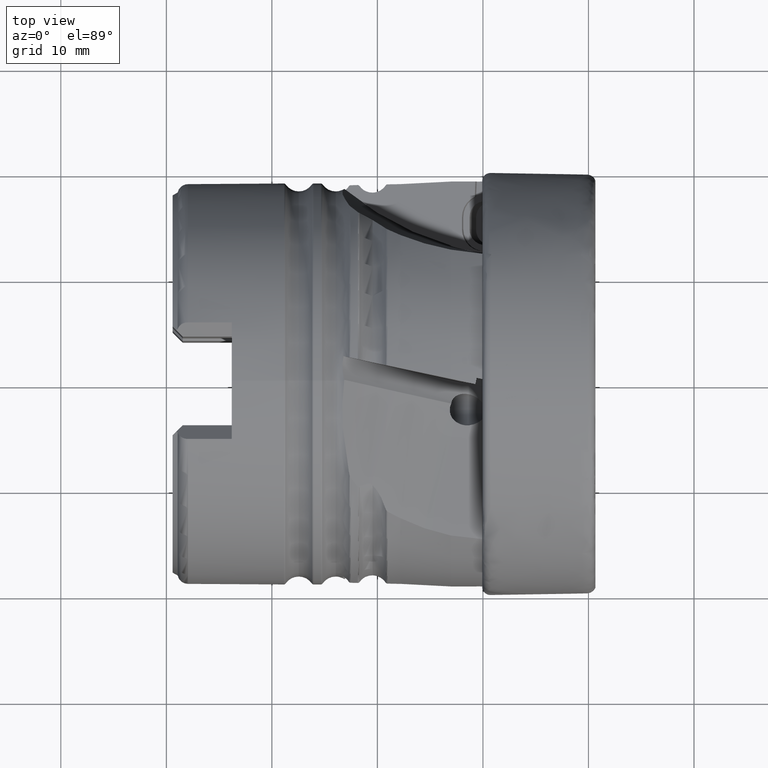
[diagram: clean part render]
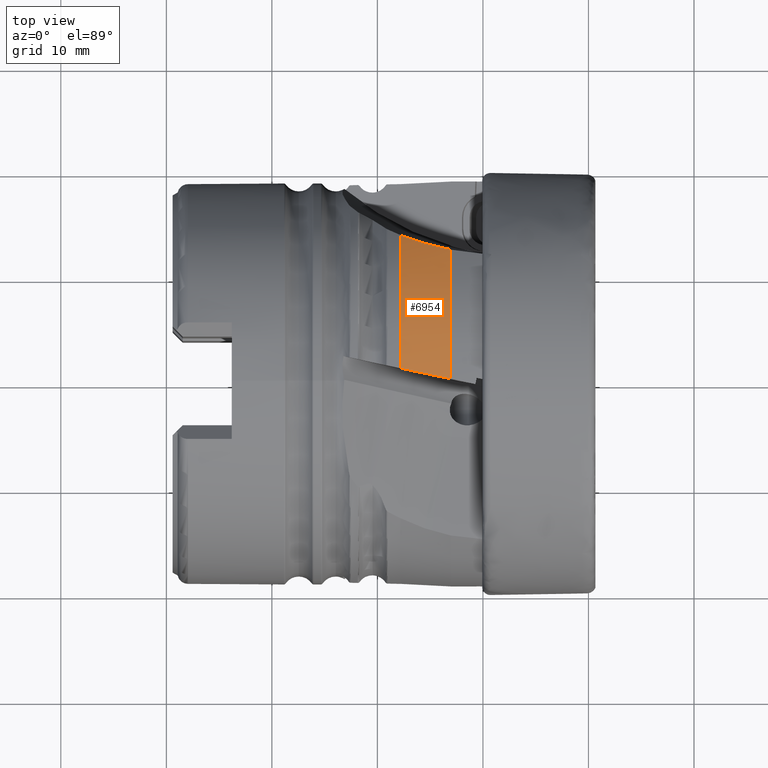
[diagram: same view with one face highlighted and labeled with its STEP entity id]
A machine part, top view. The second image highlights one B-rep face of the part: STEP entity #6954.
In plain terms, the highlighted conical surface has half-angle 2.291 deg.
Its self-contained STEP definition (entity closure, byte-faithful):
#227 =( BOUNDED_CURVE ( )  B_SPLINE_CURVE ( 3, ( #1912, #1913, #1918, #1919 ),
 .UNSPECIFIED., .F., .F. ) 
 B_SPLINE_CURVE_WITH_KNOTS ( ( 4, 4 ),
 ( 1.768227104399719800, 1.820195321746340900 ),
 .UNSPECIFIED. ) 
 CURVE ( )  GEOMETRIC_REPRESENTATION_ITEM ( )  RATIONAL_B_SPLINE_CURVE ( ( 1.000000000000000000, 0.9997749546946384000, 0.9997749546946384000, 1.000000000000000000 ) ) 
 REPRESENTATION_ITEM ( '' )  );
#354 = B_SPLINE_CURVE_WITH_KNOTS ( 'NONE', 3,
 ( #3640, #3635, #3634, #3641, #3642, #3643 ),
 .UNSPECIFIED., .F., .F.,
 ( 4, 2, 4 ),
 ( 2.060262636632892900E-007, 0.002603759459060581000, 0.005207312891857498800 ),
 .UNSPECIFIED. ) ;
#1215 = DIRECTION ( 'NONE',  ( 0.0000000000000000000, 0.0000000000000000000, -1.000000000000000000 ) ) ;
#1217 = CARTESIAN_POINT ( 'NONE',  ( -13.05000000000000600, 0.0000000000000000000, 0.0000000000000000000 ) ) ;
#1218 = DIRECTION ( 'NONE',  ( 1.000000000000000000, -0.0000000000000000000, -0.0000000000000000000 ) ) ;
#1258 = CARTESIAN_POINT ( 'NONE',  ( -17.80000000000002200, 13.88638631023993900, 12.96797113055009900 ) ) ;
#1322 = CARTESIAN_POINT ( 'NONE',  ( -17.80000000000000800, 0.0000000000000000000, 0.0000000000000000000 ) ) ;
#1323 = DIRECTION ( 'NONE',  ( 1.000000000000000000, -0.0000000000000000000, -0.0000000000000000000 ) ) ;
#1324 = DIRECTION ( 'NONE',  ( 0.0000000000000000000, 0.0000000000000000000, -1.000000000000000000 ) ) ;
#1473 = AXIS2_PLACEMENT_3D ( 'NONE', #1217, #1218, #1215 ) ;
#1480 = AXIS2_PLACEMENT_3D ( 'NONE', #1322, #1323, #1324 ) ;
#1530 = AXIS2_PLACEMENT_3D ( 'NONE', #2628, #2629, #2630 ) ;
#1849 = CIRCLE ( 'NONE', #1530, 19.19000000000000100 ) ;
#1912 = CARTESIAN_POINT ( 'NONE',  ( -13.05000000000000600, 0.1587158881291882700, 19.18934363825027500 ) ) ;
#1913 = CARTESIAN_POINT ( 'NONE',  ( -14.64250385638370700, 0.4972130322883580000, 19.12284158069783800 ) ) ;
#1918 = CARTESIAN_POINT ( 'NONE',  ( -16.22619359165712500, 0.8338366771701842800, 19.04772454267638100 ) ) ;
#1919 = CARTESIAN_POINT ( 'NONE',  ( -17.80000000000001100, 1.168359556061794500, 18.96404323839617900 ) ) ;
#2628 = CARTESIAN_POINT ( 'NONE',  ( -13.05000000000000600, 0.0000000000000000000, 0.0000000000000000000 ) ) ;
#2629 = DIRECTION ( 'NONE',  ( 1.000000000000000000, -0.0000000000000000000, -0.0000000000000000000 ) ) ;
#2630 = DIRECTION ( 'NONE',  ( 0.0000000000000000000, 0.0000000000000000000, -1.000000000000000000 ) ) ;
#3195 = CIRCLE ( 'NONE', #1480, 19.00000000000000000 ) ;
#3199 = FACE_OUTER_BOUND ( 'NONE', #8122, .T. ) ;
#3202 = CONICAL_SURFACE ( 'NONE', #1473, 19.19000000000000100, 0.03997868712329061300 ) ;
#3634 = CARTESIAN_POINT ( 'NONE',  ( -14.71121610252660600, 12.84205834470288600, 14.17446360283462100 ) ) ;
#3635 = CARTESIAN_POINT ( 'NONE',  ( -13.89246462813654200, 12.64355792279026500, 14.39312281298942300 ) ) ;
#3640 = CARTESIAN_POINT ( 'NONE',  ( -13.05000000000000400, 12.48310676093960600, 14.57491494297595800 ) ) ;
#3641 = CARTESIAN_POINT ( 'NONE',  ( -16.29679110481078700, 13.31106318221003600, 13.64652902368234100 ) ) ;
#3642 = CARTESIAN_POINT ( 'NONE',  ( -17.06368272358600200, 13.58160632517246200, 13.33748874391538800 ) ) ;
#3643 = CARTESIAN_POINT ( 'NONE',  ( -17.80000000000002200, 13.88638631023993900, 12.96797113055009900 ) ) ;
#3764 = EDGE_CURVE ( 'NONE', #4823, #7903, #354, .T. ) ;
#4823 = VERTEX_POINT ( 'NONE', #5719 ) ;
#4827 = VERTEX_POINT ( 'NONE', #5726 ) ;
#4857 = VERTEX_POINT ( 'NONE', #5782 ) ;
#5719 = CARTESIAN_POINT ( 'NONE',  ( -13.05000000000000400, 12.48310676093960600, 14.57491494297595800 ) ) ;
#5726 = CARTESIAN_POINT ( 'NONE',  ( -13.05000000000000600, 0.1587158881291882700, 19.18934363825027500 ) ) ;
#5782 = CARTESIAN_POINT ( 'NONE',  ( -17.80000000000001100, 1.168359556061794500, 18.96404323839617900 ) ) ;
#6201 = ORIENTED_EDGE ( 'NONE', *, *, #8671, .F. ) ;
#6202 = ORIENTED_EDGE ( 'NONE', *, *, #3764, .T. ) ;
#6203 = ORIENTED_EDGE ( 'NONE', *, *, #8304, .T. ) ;
#6204 = ORIENTED_EDGE ( 'NONE', *, *, #8344, .F. ) ;
#6954 = ADVANCED_FACE ( 'NONE', ( #3199 ), #3202, .T. ) ;
#7903 = VERTEX_POINT ( 'NONE', #1258 ) ;
#8122 = EDGE_LOOP ( 'NONE', ( #6201, #6202, #6203, #6204 ) ) ;
#8304 = EDGE_CURVE ( 'NONE', #7903, #4857, #3195, .T. ) ;
#8344 = EDGE_CURVE ( 'NONE', #4827, #4857, #227, .T. ) ;
#8671 = EDGE_CURVE ( 'NONE', #4823, #4827, #1849, .T. ) ;